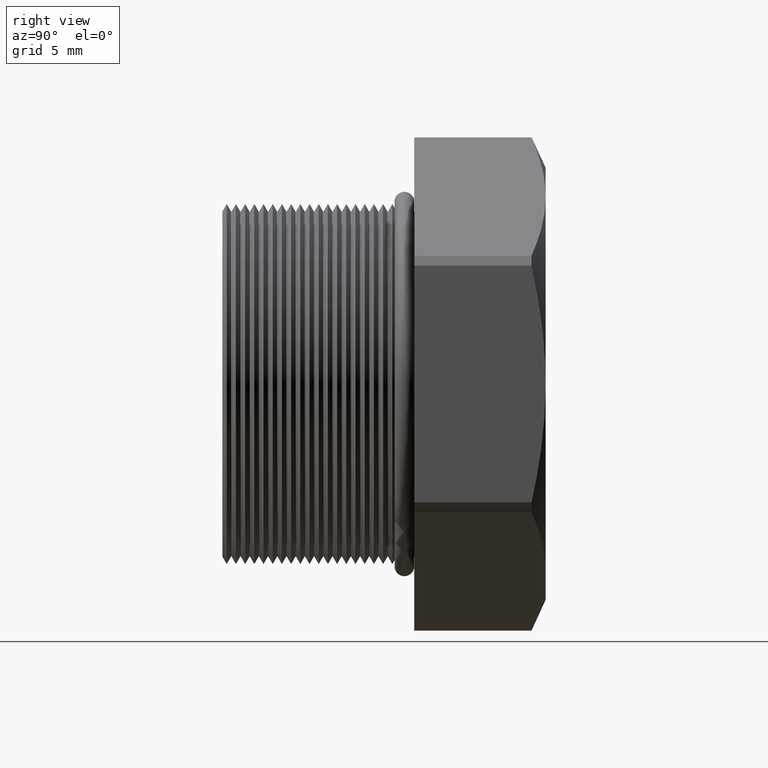
[diagram: clean part render]
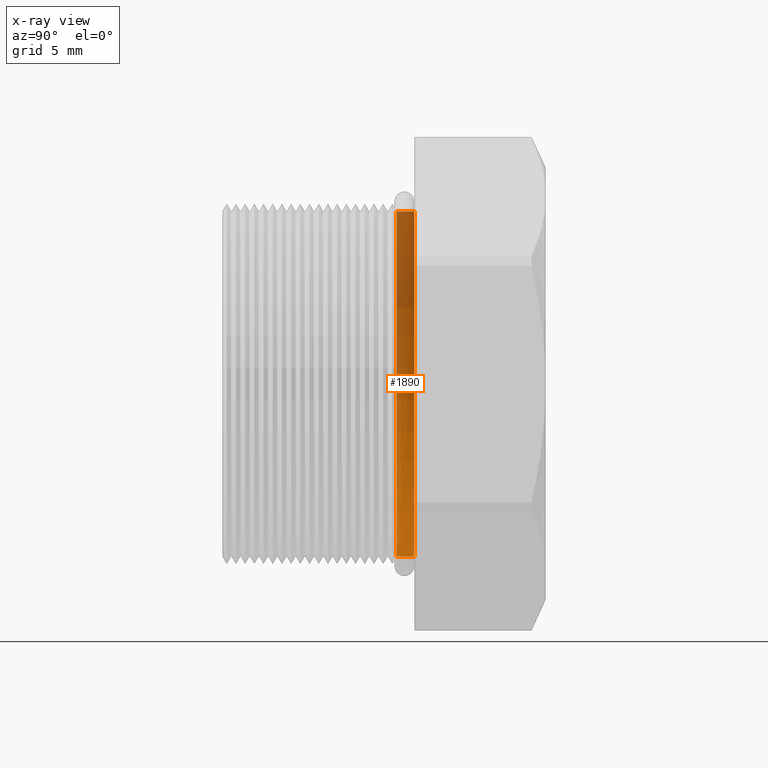
[diagram: x-ray — body ghosted, one internal face saturated and labeled with its STEP entity id]
A machine part, right view, then the same camera in x-ray: the body is ghosted and one INTERNAL B-rep face — a face not visible from any outside direction — is saturated and labeled: STEP entity #1890.
In plain terms, the highlighted cylindrical surface (partial cylindrical patch) has radius 8.001 mm, axis along (-0, -1, -0).
Its self-contained STEP definition (entity closure, byte-faithful):
#1869 = ORIENTED_EDGE ( 'NONE', *, *, #1870, .F. ) ;
#1870 = EDGE_CURVE ( 'NONE', #8710, #8698, #6234, .T. ) ;
#1890 = ADVANCED_FACE ( 'NONE', ( #6260 ), #6259, .T. ) ;
#1891 = EDGE_LOOP ( 'NONE', ( #1892, #1893, #1895, #1869 ) ) ;
#1892 = ORIENTED_EDGE ( 'NONE', *, *, #8666, .F. ) ;
#1893 = ORIENTED_EDGE ( 'NONE', *, *, #1894, .T. ) ;
#1894 = EDGE_CURVE ( 'NONE', #8669, #8671, #6258, .T. ) ;
#1895 = ORIENTED_EDGE ( 'NONE', *, *, #8727, .T. ) ;
#6226 = DIRECTION ( 'NONE',  ( 0.0000000000000000000, 0.0000000000000000000, -1.000000000000000000 ) ) ;
#6227 = DIRECTION ( 'NONE',  ( 0.0000000000000000000, -1.000000000000000000, 0.0000000000000000000 ) ) ;
#6228 = CARTESIAN_POINT ( 'NONE',  ( 0.0000000000000000000, 0.1355072448100088900, 0.0000000000000000000 ) ) ;
#6229 = AXIS2_PLACEMENT_3D ( 'NONE', #6228, #6227, #6226 ) ;
#6234 = CIRCLE ( 'NONE', #6229, 0.3150000000000000000 ) ;
#6249 = DIRECTION ( 'NONE',  ( 0.0000000000000000000, 0.0000000000000000000, -1.000000000000000000 ) ) ;
#6250 = DIRECTION ( 'NONE',  ( -0.0000000000000000000, -1.000000000000000000, -0.0000000000000000000 ) ) ;
#6251 = CARTESIAN_POINT ( 'NONE',  ( 0.0000000000000000000, 0.1675548905829479500, 0.0000000000000000000 ) ) ;
#6252 = AXIS2_PLACEMENT_3D ( 'NONE', #6251, #6250, #6249 ) ;
#6254 = DIRECTION ( 'NONE',  ( 0.0000000000000000000, 0.0000000000000000000, -1.000000000000000000 ) ) ;
#6255 = DIRECTION ( 'NONE',  ( -0.0000000000000000000, -1.000000000000000000, -0.0000000000000000000 ) ) ;
#6256 = CARTESIAN_POINT ( 'NONE',  ( 0.0000000000000000000, 0.0000000000000000000, 0.0000000000000000000 ) ) ;
#6257 = AXIS2_PLACEMENT_3D ( 'NONE', #6256, #6255, #6254 ) ;
#6258 = CIRCLE ( 'NONE', #6252, 0.3150000000000000000 ) ;
#6259 = CYLINDRICAL_SURFACE ( 'NONE', #6257, 0.3150000000000000000 ) ;
#6260 = FACE_OUTER_BOUND ( 'NONE', #1891, .T. ) ;
#7363 = CARTESIAN_POINT ( 'NONE',  ( 0.0000000000000000000, 0.1675548905829479500, -0.3150000000000000000 ) ) ;
#7366 = CARTESIAN_POINT ( 'NONE',  ( 3.857637417314162700E-017, 0.1675548905829479500, 0.3150000000000000000 ) ) ;
#7367 = DIRECTION ( 'NONE',  ( -0.0000000000000000000, -1.000000000000000000, -0.0000000000000000000 ) ) ;
#7368 = VECTOR ( 'NONE', #7367, 39.37007874015748100 ) ;
#7369 = CARTESIAN_POINT ( 'NONE',  ( 3.857637417314162700E-017, 0.0000000000000000000, 0.3150000000000000000 ) ) ;
#7370 = LINE ( 'NONE', #7369, #7368 ) ;
#7419 = CARTESIAN_POINT ( 'NONE',  ( 3.857637417314162700E-017, 0.1355072448100088900, 0.3150000000000000000 ) ) ;
#7442 = CARTESIAN_POINT ( 'NONE',  ( 0.0000000000000000000, 0.1355072448100088900, -0.3150000000000000000 ) ) ;
#7443 = VECTOR ( 'NONE', #7503, 39.37007874015748100 ) ;
#7444 = CARTESIAN_POINT ( 'NONE',  ( 0.0000000000000000000, 0.0000000000000000000, -0.3150000000000000000 ) ) ;
#7445 = LINE ( 'NONE', #7444, #7443 ) ;
#7503 = DIRECTION ( 'NONE',  ( -0.0000000000000000000, -1.000000000000000000, -0.0000000000000000000 ) ) ;
#8666 = EDGE_CURVE ( 'NONE', #8669, #8710, #7370, .T. ) ;
#8669 = VERTEX_POINT ( 'NONE', #7366 ) ;
#8671 = VERTEX_POINT ( 'NONE', #7363 ) ;
#8698 = VERTEX_POINT ( 'NONE', #7442 ) ;
#8710 = VERTEX_POINT ( 'NONE', #7419 ) ;
#8727 = EDGE_CURVE ( 'NONE', #8671, #8698, #7445, .T. ) ;